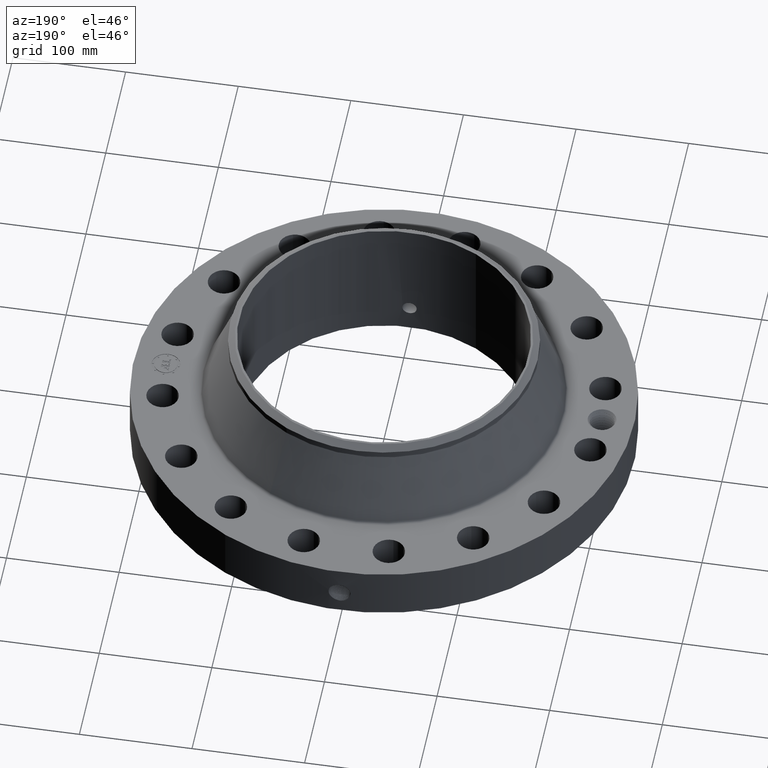
[diagram: clean part render]
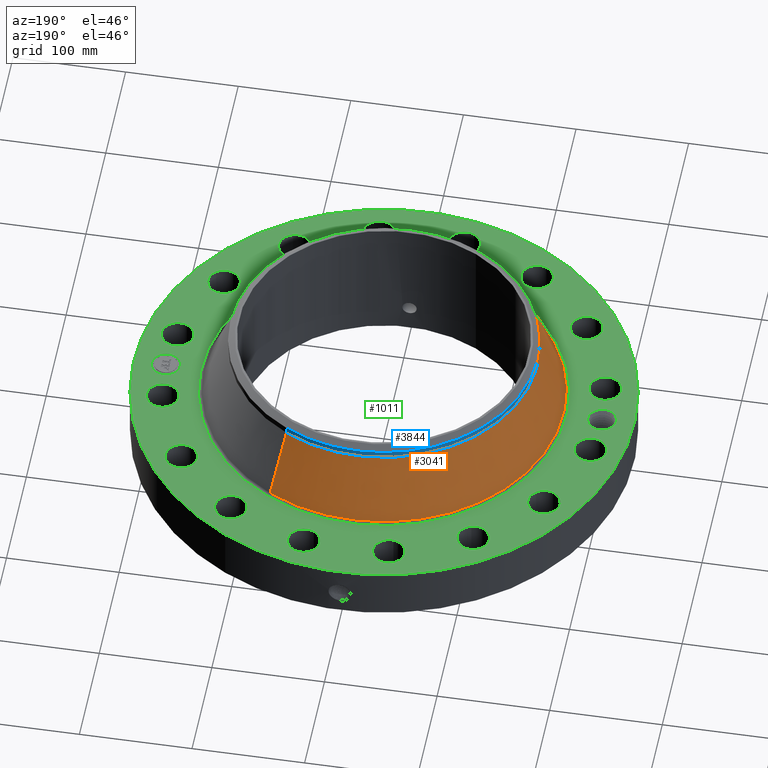
[diagram: same view with three faces highlighted in distinct colors, each labeled with its STEP entity id]
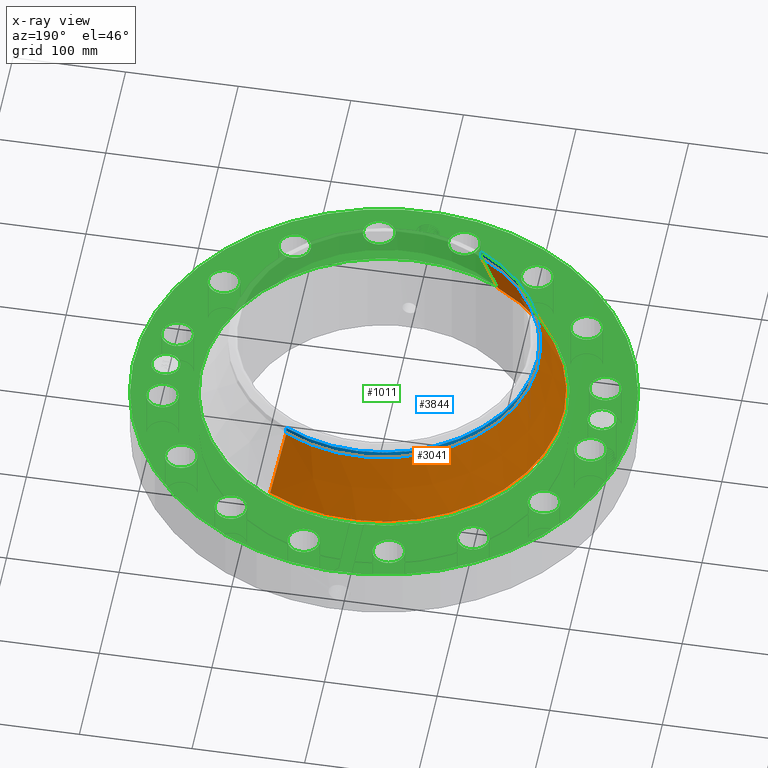
[diagram: x-ray of the same camera — body ghosted, the three highlighted faces saturated]
A machine part, auxiliary view with three faces highlighted in distinct colors.
The next image is the same camera in x-ray (body ghosted, the three faces saturated) — at least one of them is partly hidden behind the body in this view.
Their STEP definitions:

[orange] entity #3041 — the highlighted conical surface has half-angle 21.877 deg.
#2351=AXIS2_PLACEMENT_3D('Circle Axis2P3D',#2349,#2350,$) ;
#3002=AXIS2_PLACEMENT_3D('Cone Axis2P3D',#2999,#3000,#3001) ;
#3032=AXIS2_PLACEMENT_3D('Circle Axis2P3D',#3030,#3031,$) ;
#2327=CARTESIAN_POINT('Vertex',(3.01068236931,5.51101711099,2.01528688262)) ;
#2334=CARTESIAN_POINT('Vertex',(-3.01068236931,-5.51101711099,2.01528688262)) ;
#2349=CARTESIAN_POINT('Axis2P3D Location',(0.,0.,2.01528688262)) ;
#2999=CARTESIAN_POINT('Axis2P3D Location',(0.,0.,4.26862959014)) ;
#3004=CARTESIAN_POINT('Line Origine',(2.79379731966,5.11401169058,3.14195823638)) ;
#3008=CARTESIAN_POINT('Vertex',(2.57691227001,4.71700627018,4.26862959014)) ;
#3015=CARTESIAN_POINT('Vertex',(-2.57691227001,-4.71700627018,4.26862959014)) ;
#3018=CARTESIAN_POINT('Line Origine',(-2.79379731966,-5.11401169058,3.14195823638)) ;
#3030=CARTESIAN_POINT('Axis2P3D Location',(0.,0.,4.26862959014)) ;
#2350=DIRECTION('Axis2P3D Direction',(0.,0.,-0.0393700787402)) ;
#3000=DIRECTION('Axis2P3D Direction',(0.,0.,-0.0393700787402)) ;
#3001=DIRECTION('Axis2P3D XDirection',(-0.0188750212049,-0.0345504945626,0.)) ;
#3005=DIRECTION('Vector Direction',(0.00703300865759,0.0128738359944,-0.0365349727798)) ;
#3019=DIRECTION('Vector Direction',(-0.00703300865759,-0.0128738359944,-0.0365349727798)) ;
#3031=DIRECTION('Axis2P3D Direction',(0.,0.,-0.0393700787402)) ;
#3006=VECTOR('Line Direction',#3005,0.0393700787402) ;
#3020=VECTOR('Line Direction',#3019,0.0393700787402) ;
#3036=ORIENTED_EDGE('',*,*,#2353,.F.) ;
#3037=ORIENTED_EDGE('',*,*,#3022,.T.) ;
#3038=ORIENTED_EDGE('',*,*,#3034,.T.) ;
#3039=ORIENTED_EDGE('',*,*,#3010,.F.) ;
#3041=ADVANCED_FACE('PartBody',(#3040),#3003,.T.) ;
#2352=CIRCLE('generated circle',#2351,6.27977053136) ;
#3033=CIRCLE('generated circle',#3032,5.37500000002) ;
#3003=CONICAL_SURFACE('Cone',#3002,5.37500000002,0.381819232535) ;
#2353=EDGE_CURVE('',#2335,#2328,#2352,.T.) ;
#3010=EDGE_CURVE('',#2328,#3009,#3007,.F.) ;
#3022=EDGE_CURVE('',#2335,#3016,#3021,.F.) ;
#3034=EDGE_CURVE('',#3016,#3009,#3033,.T.) ;
#3035=EDGE_LOOP('',(#3036,#3037,#3038,#3039)) ;
#3040=FACE_OUTER_BOUND('',#3035,.T.) ;
#3007=LINE('Line',#3004,#3006) ;
#3021=LINE('Line',#3018,#3020) ;
#2328=VERTEX_POINT('',#2327) ;
#2335=VERTEX_POINT('',#2334) ;
#3009=VERTEX_POINT('',#3008) ;
#3016=VERTEX_POINT('',#3015) ;

[blue] entity #3844 — the highlighted cylindrical surface (partial cylindrical patch) has radius 136.525 mm, axis along (0, 0, -1).
#3032=AXIS2_PLACEMENT_3D('Circle Axis2P3D',#3030,#3031,$) ;
#3789=AXIS2_PLACEMENT_3D('Cylinder Axis2P3D',#3786,#3787,#3788) ;
#3827=AXIS2_PLACEMENT_3D('Circle Axis2P3D',#3825,#3826,$) ;
#3834=AXIS2_PLACEMENT_3D('Circle Axis2P3D',#3832,#3833,$) ;
#3008=CARTESIAN_POINT('Vertex',(2.57691227001,4.71700627018,4.26862959014)) ;
#3015=CARTESIAN_POINT('Vertex',(-2.57691227001,-4.71700627018,4.26862959014)) ;
#3030=CARTESIAN_POINT('Axis2P3D Location',(0.,0.,4.26862959014)) ;
#3786=CARTESIAN_POINT('Axis2P3D Location',(0.,0.,2.34000000001)) ;
#3791=CARTESIAN_POINT('Line Origine',(-2.57691227001,-4.71700627018,4.38673982636)) ;
#3795=CARTESIAN_POINT('Vertex',(-2.57691227001,-4.71700627018,4.50485006258)) ;
#3798=CARTESIAN_POINT('Line Origine',(2.57691227001,4.71700627018,4.38673982636)) ;
#3802=CARTESIAN_POINT('Vertex',(2.57691227001,4.71700627018,4.50485006258)) ;
#3825=CARTESIAN_POINT('Axis2P3D Location',(0.,0.,4.50485006258)) ;
#3829=CARTESIAN_POINT('Vertex',(-2.57691227001,4.71700627018,4.50485006258)) ;
#3832=CARTESIAN_POINT('Axis2P3D Location',(0.,0.,4.50485006258)) ;
#3031=DIRECTION('Axis2P3D Direction',(0.,0.,-0.0393700787402)) ;
#3787=DIRECTION('Axis2P3D Direction',(0.,0.,-0.0393700787402)) ;
#3788=DIRECTION('Axis2P3D XDirection',(-0.0188750212049,-0.0345504945626,0.)) ;
#3792=DIRECTION('Vector Direction',(0.,0.,-0.0393700787402)) ;
#3799=DIRECTION('Vector Direction',(0.,0.,-0.0393700787402)) ;
#3826=DIRECTION('Axis2P3D Direction',(0.,0.,-0.0393700787402)) ;
#3833=DIRECTION('Axis2P3D Direction',(0.,0.,-0.0393700787402)) ;
#3793=VECTOR('Line Direction',#3792,0.0393700787402) ;
#3800=VECTOR('Line Direction',#3799,0.0393700787402) ;
#3838=ORIENTED_EDGE('',*,*,#3804,.F.) ;
#3839=ORIENTED_EDGE('',*,*,#3034,.F.) ;
#3840=ORIENTED_EDGE('',*,*,#3797,.T.) ;
#3841=ORIENTED_EDGE('',*,*,#3831,.F.) ;
#3842=ORIENTED_EDGE('',*,*,#3836,.T.) ;
#3844=ADVANCED_FACE('PartBody',(#3843),#3790,.T.) ;
#3033=CIRCLE('generated circle',#3032,5.37500000002) ;
#3828=CIRCLE('generated circle',#3827,5.37500000002) ;
#3835=CIRCLE('generated circle',#3834,5.37500000002) ;
#3790=CYLINDRICAL_SURFACE('generated cylinder',#3789,5.37500000002) ;
#3034=EDGE_CURVE('',#3016,#3009,#3033,.T.) ;
#3797=EDGE_CURVE('',#3016,#3796,#3794,.F.) ;
#3804=EDGE_CURVE('',#3009,#3803,#3801,.F.) ;
#3831=EDGE_CURVE('',#3830,#3796,#3828,.F.) ;
#3836=EDGE_CURVE('',#3830,#3803,#3835,.T.) ;
#3837=EDGE_LOOP('',(#3838,#3839,#3840,#3841,#3842)) ;
#3843=FACE_OUTER_BOUND('',#3837,.T.) ;
#3794=LINE('Line',#3791,#3793) ;
#3801=LINE('Line',#3798,#3800) ;
#3009=VERTEX_POINT('',#3008) ;
#3016=VERTEX_POINT('',#3015) ;
#3796=VERTEX_POINT('',#3795) ;
#3803=VERTEX_POINT('',#3802) ;
#3830=VERTEX_POINT('',#3829) ;

[green] entity #1011 — the highlighted planar face has unit normal (0, 0, -1).
#58=AXIS2_PLACEMENT_3D('Circle Axis2P3D',#56,#57,$) ;
#533=AXIS2_PLACEMENT_3D('Circle Axis2P3D',#531,#532,$) ;
#633=AXIS2_PLACEMENT_3D('Plane Axis2P3D',#630,#631,#632) ;
#663=AXIS2_PLACEMENT_3D('Circle Axis2P3D',#661,#662,$) ;
#670=AXIS2_PLACEMENT_3D('Circle Axis2P3D',#668,#669,$) ;
#677=AXIS2_PLACEMENT_3D('Circle Axis2P3D',#675,#676,$) ;
#689=AXIS2_PLACEMENT_3D('Circle Axis2P3D',#687,#688,$) ;
#698=AXIS2_PLACEMENT_3D('Circle Axis2P3D',#696,#697,$) ;
#707=AXIS2_PLACEMENT_3D('Circle Axis2P3D',#705,#706,$) ;
#716=AXIS2_PLACEMENT_3D('Circle Axis2P3D',#714,#715,$) ;
#725=AXIS2_PLACEMENT_3D('Circle Axis2P3D',#723,#724,$) ;
#734=AXIS2_PLACEMENT_3D('Circle Axis2P3D',#732,#733,$) ;
#743=AXIS2_PLACEMENT_3D('Circle Axis2P3D',#741,#742,$) ;
#752=AXIS2_PLACEMENT_3D('Circle Axis2P3D',#750,#751,$) ;
#761=AXIS2_PLACEMENT_3D('Circle Axis2P3D',#759,#760,$) ;
#770=AXIS2_PLACEMENT_3D('Circle Axis2P3D',#768,#769,$) ;
#779=AXIS2_PLACEMENT_3D('Circle Axis2P3D',#777,#778,$) ;
#788=AXIS2_PLACEMENT_3D('Circle Axis2P3D',#786,#787,$) ;
#797=AXIS2_PLACEMENT_3D('Circle Axis2P3D',#795,#796,$) ;
#806=AXIS2_PLACEMENT_3D('Circle Axis2P3D',#804,#805,$) ;
#815=AXIS2_PLACEMENT_3D('Circle Axis2P3D',#813,#814,$) ;
#824=AXIS2_PLACEMENT_3D('Circle Axis2P3D',#822,#823,$) ;
#833=AXIS2_PLACEMENT_3D('Circle Axis2P3D',#831,#832,$) ;
#842=AXIS2_PLACEMENT_3D('Circle Axis2P3D',#840,#841,$) ;
#851=AXIS2_PLACEMENT_3D('Circle Axis2P3D',#849,#850,$) ;
#860=AXIS2_PLACEMENT_3D('Circle Axis2P3D',#858,#859,$) ;
#869=AXIS2_PLACEMENT_3D('Circle Axis2P3D',#867,#868,$) ;
#878=AXIS2_PLACEMENT_3D('Circle Axis2P3D',#876,#877,$) ;
#887=AXIS2_PLACEMENT_3D('Circle Axis2P3D',#885,#886,$) ;
#896=AXIS2_PLACEMENT_3D('Circle Axis2P3D',#894,#895,$) ;
#905=AXIS2_PLACEMENT_3D('Circle Axis2P3D',#903,#904,$) ;
#914=AXIS2_PLACEMENT_3D('Circle Axis2P3D',#912,#913,$) ;
#923=AXIS2_PLACEMENT_3D('Circle Axis2P3D',#921,#922,$) ;
#932=AXIS2_PLACEMENT_3D('Circle Axis2P3D',#930,#931,$) ;
#941=AXIS2_PLACEMENT_3D('Circle Axis2P3D',#939,#940,$) ;
#950=AXIS2_PLACEMENT_3D('Circle Axis2P3D',#948,#949,$) ;
#959=AXIS2_PLACEMENT_3D('Circle Axis2P3D',#957,#958,$) ;
#968=AXIS2_PLACEMENT_3D('Circle Axis2P3D',#966,#967,$) ;
#977=AXIS2_PLACEMENT_3D('Circle Axis2P3D',#975,#976,$) ;
#986=AXIS2_PLACEMENT_3D('Circle Axis2P3D',#984,#985,$) ;
#995=AXIS2_PLACEMENT_3D('Circle Axis2P3D',#993,#994,$) ;
#1004=AXIS2_PLACEMENT_3D('Circle Axis2P3D',#1002,#1003,$) ;
#53=CARTESIAN_POINT('Vertex',(-4.1949734628,-7.67884741657,1.94000000001)) ;
#56=CARTESIAN_POINT('Axis2P3D Location',(0.,0.,1.94000000001)) ;
#60=CARTESIAN_POINT('Vertex',(4.1949734628,7.67884741657,1.94000000001)) ;
#531=CARTESIAN_POINT('Axis2P3D Location',(0.,0.,1.94000000001)) ;
#630=CARTESIAN_POINT('Axis2P3D Location',(0.,8.75000000003,1.94000000001)) ;
#640=CARTESIAN_POINT('Control Point',(-7.12500000003,1.1189649382E-015,1.94000000001)) ;
#641=CARTESIAN_POINT('Control Point',(-7.12549933771,0.0123420388039,1.94000000001)) ;
#642=CARTESIAN_POINT('Control Point',(-7.12637981959,0.0246614623112,1.94000000001)) ;
#643=CARTESIAN_POINT('Control Point',(-7.12764056744,0.0369424494537,1.94000000001)) ;
#644=CARTESIAN_POINT('Control Point',(-7.12927967867,0.0491692258093,1.94000000001)) ;
#645=CARTESIAN_POINT('Control Point',(-7.13129426964,0.0613261916736,1.94000000001)) ;
#646=CARTESIAN_POINT('Vertex',(-7.12500000003,1.1189649382E-015,1.94000000001)) ;
#648=CARTESIAN_POINT('Vertex',(-7.13129426964,0.0613261916736,1.94000000001)) ;
#652=CARTESIAN_POINT('Control Point',(-7.12500000003,0.,1.94000000001)) ;
#653=CARTESIAN_POINT('Control Point',(-7.12549957615,-0.0123479322051,1.94000000001)) ;
#654=CARTESIAN_POINT('Control Point',(-7.12638066088,-0.0246732275083,1.94000000001)) ;
#655=CARTESIAN_POINT('Control Point',(-7.12764219891,-0.0369596660273,1.94000000001)) ;
#656=CARTESIAN_POINT('Control Point',(-7.12928214218,-0.0491911921282,1.94000000001)) ;
#657=CARTESIAN_POINT('Control Point',(-7.13129747787,-0.0613520139359,1.94000000001)) ;
#658=CARTESIAN_POINT('Vertex',(-7.13129747787,-0.0613520139359,1.94000000001)) ;
#661=CARTESIAN_POINT('Axis2P3D Location',(-7.62500000003,-4.47585975282E-015,1.94000000001)) ;
#665=CARTESIAN_POINT('Vertex',(-7.18840267549,-0.238514205457,1.94000000001)) ;
#668=CARTESIAN_POINT('Axis2P3D Location',(-7.62500000003,-4.47585975282E-015,1.94000000001)) ;
#672=CARTESIAN_POINT('Vertex',(-8.06159732457,0.238514205457,1.94000000001)) ;
#675=CARTESIAN_POINT('Axis2P3D Location',(-7.62500000003,-4.47585975282E-015,1.94000000001)) ;
#687=CARTESIAN_POINT('Axis2P3D Location',(7.4784877631,-1.48756370538,1.94000000001)) ;
#691=CARTESIAN_POINT('Vertex',(6.98704152844,-1.21908540376,1.94000000001)) ;
#693=CARTESIAN_POINT('Vertex',(7.96993399777,-1.756042007,1.94000000001)) ;
#696=CARTESIAN_POINT('Axis2P3D Location',(7.4784877631,-1.48756370538,1.94000000001)) ;
#705=CARTESIAN_POINT('Axis2P3D Location',(0.,0.,1.94000000001)) ;
#709=CARTESIAN_POINT('Vertex',(-3.06407052467,-5.60874347386,1.94000000001)) ;
#711=CARTESIAN_POINT('Vertex',(3.06407052467,5.60874347386,1.94000000001)) ;
#714=CARTESIAN_POINT('Axis2P3D Location',(0.,0.,1.94000000001)) ;
#723=CARTESIAN_POINT('Axis2P3D Location',(6.33995579383,-4.23622302679,1.94000000001)) ;
#727=CARTESIAN_POINT('Vertex',(6.69125071339,-4.67233296648,1.94000000001)) ;
#729=CARTESIAN_POINT('Vertex',(5.98866087428,-3.8001130871,1.94000000001)) ;
#732=CARTESIAN_POINT('Axis2P3D Location',(6.33995579383,-4.23622302679,1.94000000001)) ;
#741=CARTESIAN_POINT('Axis2P3D Location',(4.23622302679,-6.33995579383,1.94000000001)) ;
#745=CARTESIAN_POINT('Vertex',(4.39388516423,-6.87730358663,1.94000000001)) ;
#747=CARTESIAN_POINT('Vertex',(4.07856088935,-5.80260800104,1.94000000001)) ;
#750=CARTESIAN_POINT('Axis2P3D Location',(4.23622302679,-6.33995579383,1.94000000001)) ;
#759=CARTESIAN_POINT('Axis2P3D Location',(1.48756370538,-7.4784877631,1.94000000001)) ;
#763=CARTESIAN_POINT('Vertex',(1.42759042949,-8.03526707862,1.94000000001)) ;
#765=CARTESIAN_POINT('Vertex',(1.54753698127,-6.92170844759,1.94000000001)) ;
#768=CARTESIAN_POINT('Axis2P3D Location',(1.48756370538,-7.4784877631,1.94000000001)) ;
#777=CARTESIAN_POINT('Axis2P3D Location',(-1.48756370538,-7.4784877631,1.94000000001)) ;
#781=CARTESIAN_POINT('Vertex',(-1.756042007,-7.96993399777,1.94000000001)) ;
#783=CARTESIAN_POINT('Vertex',(-1.21908540376,-6.98704152844,1.94000000001)) ;
#786=CARTESIAN_POINT('Axis2P3D Location',(-1.48756370538,-7.4784877631,1.94000000001)) ;
#795=CARTESIAN_POINT('Axis2P3D Location',(-4.23622302679,-6.33995579383,1.94000000001)) ;
#799=CARTESIAN_POINT('Vertex',(-4.67233296648,-6.69125071339,1.94000000001)) ;
#801=CARTESIAN_POINT('Vertex',(-3.8001130871,-5.98866087428,1.94000000001)) ;
#804=CARTESIAN_POINT('Axis2P3D Location',(-4.23622302679,-6.33995579383,1.94000000001)) ;
#813=CARTESIAN_POINT('Axis2P3D Location',(-6.33995579383,-4.23622302679,1.94000000001)) ;
#817=CARTESIAN_POINT('Vertex',(-6.87730358663,-4.39388516423,1.94000000001)) ;
#819=CARTESIAN_POINT('Vertex',(-5.80260800104,-4.07856088935,1.94000000001)) ;
#822=CARTESIAN_POINT('Axis2P3D Location',(-6.33995579383,-4.23622302679,1.94000000001)) ;
#831=CARTESIAN_POINT('Axis2P3D Location',(-7.4784877631,-1.48756370538,1.94000000001)) ;
#835=CARTESIAN_POINT('Vertex',(-8.03526707862,-1.42759042949,1.94000000001)) ;
#837=CARTESIAN_POINT('Vertex',(-6.92170844759,-1.54753698127,1.94000000001)) ;
#840=CARTESIAN_POINT('Axis2P3D Location',(-7.4784877631,-1.48756370538,1.94000000001)) ;
#849=CARTESIAN_POINT('Axis2P3D Location',(-7.4784877631,1.48756370538,1.94000000001)) ;
#853=CARTESIAN_POINT('Vertex',(-7.96993399777,1.756042007,1.94000000001)) ;
#855=CARTESIAN_POINT('Vertex',(-6.98704152844,1.21908540376,1.94000000001)) ;
#858=CARTESIAN_POINT('Axis2P3D Location',(-7.4784877631,1.48756370538,1.94000000001)) ;
#867=CARTESIAN_POINT('Axis2P3D Location',(-6.33995579383,4.23622302679,1.94000000001)) ;
#871=CARTESIAN_POINT('Vertex',(-6.69125071339,4.67233296648,1.94000000001)) ;
#873=CARTESIAN_POINT('Vertex',(-5.98866087428,3.8001130871,1.94000000001)) ;
#876=CARTESIAN_POINT('Axis2P3D Location',(-6.33995579383,4.23622302679,1.94000000001)) ;
#885=CARTESIAN_POINT('Axis2P3D Location',(-4.23622302679,6.33995579383,1.94000000001)) ;
#889=CARTESIAN_POINT('Vertex',(-4.39388516423,6.87730358663,1.94000000001)) ;
#891=CARTESIAN_POINT('Vertex',(-4.07856088935,5.80260800104,1.94000000001)) ;
#894=CARTESIAN_POINT('Axis2P3D Location',(-4.23622302679,6.33995579383,1.94000000001)) ;
#903=CARTESIAN_POINT('Axis2P3D Location',(-1.48756370538,7.4784877631,1.94000000001)) ;
#907=CARTESIAN_POINT('Vertex',(-1.42759042949,8.03526707862,1.94000000001)) ;
#909=CARTESIAN_POINT('Vertex',(-1.54753698127,6.92170844759,1.94000000001)) ;
#912=CARTESIAN_POINT('Axis2P3D Location',(-1.48756370538,7.4784877631,1.94000000001)) ;
#921=CARTESIAN_POINT('Axis2P3D Location',(1.48756370538,7.4784877631,1.94000000001)) ;
#925=CARTESIAN_POINT('Vertex',(1.756042007,7.96993399777,1.94000000001)) ;
#927=CARTESIAN_POINT('Vertex',(1.21908540376,6.98704152844,1.94000000001)) ;
#930=CARTESIAN_POINT('Axis2P3D Location',(1.48756370538,7.4784877631,1.94000000001)) ;
#939=CARTESIAN_POINT('Axis2P3D Location',(4.23622302679,6.33995579383,1.94000000001)) ;
#943=CARTESIAN_POINT('Vertex',(4.67233296648,6.69125071339,1.94000000001)) ;
#945=CARTESIAN_POINT('Vertex',(3.8001130871,5.98866087428,1.94000000001)) ;
#948=CARTESIAN_POINT('Axis2P3D Location',(4.23622302679,6.33995579383,1.94000000001)) ;
#957=CARTESIAN_POINT('Axis2P3D Location',(6.33995579383,4.23622302679,1.94000000001)) ;
#961=CARTESIAN_POINT('Vertex',(6.87730358663,4.39388516423,1.94000000001)) ;
#963=CARTESIAN_POINT('Vertex',(5.80260800104,4.07856088935,1.94000000001)) ;
#966=CARTESIAN_POINT('Axis2P3D Location',(6.33995579383,4.23622302679,1.94000000001)) ;
#975=CARTESIAN_POINT('Axis2P3D Location',(7.4784877631,1.48756370538,1.94000000001)) ;
#979=CARTESIAN_POINT('Vertex',(8.03526707862,1.42759042949,1.94000000001)) ;
#981=CARTESIAN_POINT('Vertex',(6.92170844759,1.54753698127,1.94000000001)) ;
#984=CARTESIAN_POINT('Axis2P3D Location',(7.4784877631,1.48756370538,1.94000000001)) ;
#993=CARTESIAN_POINT('Axis2P3D Location',(7.62500000003,-3.35689481461E-014,1.94000000001)) ;
#997=CARTESIAN_POINT('Vertex',(7.62500000003,0.499999995002,1.94000000001)) ;
#999=CARTESIAN_POINT('Vertex',(7.62500000003,-0.499999995002,1.94000000001)) ;
#1002=CARTESIAN_POINT('Axis2P3D Location',(7.62500000003,-3.24499832079E-014,1.94000000001)) ;
#57=DIRECTION('Axis2P3D Direction',(0.,0.,-0.0393700787402)) ;
#532=DIRECTION('Axis2P3D Direction',(0.,0.,-0.0393700787402)) ;
#631=DIRECTION('Axis2P3D Direction',(0.,0.,-0.0393700787402)) ;
#632=DIRECTION('Axis2P3D XDirection',(0.0393700787402,0.,0.)) ;
#662=DIRECTION('Axis2P3D Direction',(0.,0.,-0.0393700787402)) ;
#669=DIRECTION('Axis2P3D Direction',(0.,0.,-0.0393700787402)) ;
#676=DIRECTION('Axis2P3D Direction',(0.,0.,-0.0393700787402)) ;
#688=DIRECTION('Axis2P3D Direction',(0.,0.,-0.0393700787402)) ;
#697=DIRECTION('Axis2P3D Direction',(0.,0.,-0.0393700787402)) ;
#706=DIRECTION('Axis2P3D Direction',(0.,0.,-0.0393700787402)) ;
#715=DIRECTION('Axis2P3D Direction',(0.,0.,-0.0393700787402)) ;
#724=DIRECTION('Axis2P3D Direction',(0.,0.,-0.0393700787402)) ;
#733=DIRECTION('Axis2P3D Direction',(0.,0.,-0.0393700787402)) ;
#742=DIRECTION('Axis2P3D Direction',(0.,0.,-0.0393700787402)) ;
#751=DIRECTION('Axis2P3D Direction',(0.,0.,-0.0393700787402)) ;
#760=DIRECTION('Axis2P3D Direction',(0.,0.,-0.0393700787402)) ;
#769=DIRECTION('Axis2P3D Direction',(0.,0.,-0.0393700787402)) ;
#778=DIRECTION('Axis2P3D Direction',(0.,0.,-0.0393700787402)) ;
#787=DIRECTION('Axis2P3D Direction',(0.,0.,-0.0393700787402)) ;
#796=DIRECTION('Axis2P3D Direction',(0.,0.,-0.0393700787402)) ;
#805=DIRECTION('Axis2P3D Direction',(0.,0.,-0.0393700787402)) ;
#814=DIRECTION('Axis2P3D Direction',(0.,0.,-0.0393700787402)) ;
#823=DIRECTION('Axis2P3D Direction',(0.,0.,-0.0393700787402)) ;
#832=DIRECTION('Axis2P3D Direction',(0.,0.,-0.0393700787402)) ;
#841=DIRECTION('Axis2P3D Direction',(0.,0.,-0.0393700787402)) ;
#850=DIRECTION('Axis2P3D Direction',(0.,0.,-0.0393700787402)) ;
#859=DIRECTION('Axis2P3D Direction',(0.,0.,-0.0393700787402)) ;
#868=DIRECTION('Axis2P3D Direction',(0.,0.,-0.0393700787402)) ;
#877=DIRECTION('Axis2P3D Direction',(0.,0.,-0.0393700787402)) ;
#886=DIRECTION('Axis2P3D Direction',(0.,0.,-0.0393700787402)) ;
#895=DIRECTION('Axis2P3D Direction',(0.,0.,-0.0393700787402)) ;
#904=DIRECTION('Axis2P3D Direction',(0.,0.,-0.0393700787402)) ;
#913=DIRECTION('Axis2P3D Direction',(0.,0.,-0.0393700787402)) ;
#922=DIRECTION('Axis2P3D Direction',(0.,0.,-0.0393700787402)) ;
#931=DIRECTION('Axis2P3D Direction',(0.,0.,-0.0393700787402)) ;
#940=DIRECTION('Axis2P3D Direction',(0.,0.,-0.0393700787402)) ;
#949=DIRECTION('Axis2P3D Direction',(0.,0.,-0.0393700787402)) ;
#958=DIRECTION('Axis2P3D Direction',(0.,0.,-0.0393700787402)) ;
#967=DIRECTION('Axis2P3D Direction',(0.,0.,-0.0393700787402)) ;
#976=DIRECTION('Axis2P3D Direction',(0.,0.,-0.0393700787402)) ;
#985=DIRECTION('Axis2P3D Direction',(0.,0.,-0.0393700787402)) ;
#994=DIRECTION('Axis2P3D Direction',(0.,0.,-0.0393700787402)) ;
#1003=DIRECTION('Axis2P3D Direction',(0.,0.,-0.0393700787402)) ;
#636=ORIENTED_EDGE('',*,*,#535,.F.) ;
#637=ORIENTED_EDGE('',*,*,#62,.F.) ;
#681=ORIENTED_EDGE('',*,*,#650,.F.) ;
#682=ORIENTED_EDGE('',*,*,#660,.T.) ;
#683=ORIENTED_EDGE('',*,*,#667,.T.) ;
#684=ORIENTED_EDGE('',*,*,#674,.T.) ;
#685=ORIENTED_EDGE('',*,*,#679,.T.) ;
#702=ORIENTED_EDGE('',*,*,#695,.T.) ;
#703=ORIENTED_EDGE('',*,*,#700,.T.) ;
#720=ORIENTED_EDGE('',*,*,#713,.T.) ;
#721=ORIENTED_EDGE('',*,*,#718,.T.) ;
#738=ORIENTED_EDGE('',*,*,#731,.T.) ;
#739=ORIENTED_EDGE('',*,*,#736,.T.) ;
#756=ORIENTED_EDGE('',*,*,#749,.T.) ;
#757=ORIENTED_EDGE('',*,*,#754,.T.) ;
#774=ORIENTED_EDGE('',*,*,#767,.T.) ;
#775=ORIENTED_EDGE('',*,*,#772,.T.) ;
#792=ORIENTED_EDGE('',*,*,#785,.T.) ;
#793=ORIENTED_EDGE('',*,*,#790,.T.) ;
#810=ORIENTED_EDGE('',*,*,#803,.T.) ;
#811=ORIENTED_EDGE('',*,*,#808,.T.) ;
#828=ORIENTED_EDGE('',*,*,#821,.T.) ;
#829=ORIENTED_EDGE('',*,*,#826,.T.) ;
#846=ORIENTED_EDGE('',*,*,#839,.T.) ;
#847=ORIENTED_EDGE('',*,*,#844,.T.) ;
#864=ORIENTED_EDGE('',*,*,#857,.T.) ;
#865=ORIENTED_EDGE('',*,*,#862,.T.) ;
#882=ORIENTED_EDGE('',*,*,#875,.T.) ;
#883=ORIENTED_EDGE('',*,*,#880,.T.) ;
#900=ORIENTED_EDGE('',*,*,#893,.T.) ;
#901=ORIENTED_EDGE('',*,*,#898,.T.) ;
#918=ORIENTED_EDGE('',*,*,#911,.T.) ;
#919=ORIENTED_EDGE('',*,*,#916,.T.) ;
#936=ORIENTED_EDGE('',*,*,#929,.T.) ;
#937=ORIENTED_EDGE('',*,*,#934,.T.) ;
#954=ORIENTED_EDGE('',*,*,#947,.T.) ;
#955=ORIENTED_EDGE('',*,*,#952,.T.) ;
#972=ORIENTED_EDGE('',*,*,#965,.T.) ;
#973=ORIENTED_EDGE('',*,*,#970,.T.) ;
#990=ORIENTED_EDGE('',*,*,#983,.T.) ;
#991=ORIENTED_EDGE('',*,*,#988,.T.) ;
#1008=ORIENTED_EDGE('',*,*,#1001,.T.) ;
#1009=ORIENTED_EDGE('',*,*,#1006,.T.) ;
#686=FACE_BOUND('',#680,.T.) ;
#704=FACE_BOUND('',#701,.T.) ;
#722=FACE_BOUND('',#719,.T.) ;
#740=FACE_BOUND('',#737,.T.) ;
#758=FACE_BOUND('',#755,.T.) ;
#776=FACE_BOUND('',#773,.T.) ;
#794=FACE_BOUND('',#791,.T.) ;
#812=FACE_BOUND('',#809,.T.) ;
#830=FACE_BOUND('',#827,.T.) ;
#848=FACE_BOUND('',#845,.T.) ;
#866=FACE_BOUND('',#863,.T.) ;
#884=FACE_BOUND('',#881,.T.) ;
#902=FACE_BOUND('',#899,.T.) ;
#920=FACE_BOUND('',#917,.T.) ;
#938=FACE_BOUND('',#935,.T.) ;
#956=FACE_BOUND('',#953,.T.) ;
#974=FACE_BOUND('',#971,.T.) ;
#992=FACE_BOUND('',#989,.T.) ;
#1010=FACE_BOUND('',#1007,.T.) ;
#1011=ADVANCED_FACE('PartBody',(#638,#686,#704,#722,#740,#758,#776,#794,#812,#830,#848,#866,#884,#902,#920,#938,#956,#974,#992,#1010),#634,.F.) ;
#639=B_SPLINE_CURVE_WITH_KNOTS('',5,(#640,#641,#642,#643,#644,#645),.UNSPECIFIED.,.F.,.U.,(6,6),(0.,2.15175435869),.UNSPECIFIED.) ;
#651=B_SPLINE_CURVE_WITH_KNOTS('',5,(#652,#653,#654,#655,#656,#657),.UNSPECIFIED.,.F.,.U.,(6,6),(0.,2.15278183491),.UNSPECIFIED.) ;
#59=CIRCLE('generated circle',#58,8.75000000003) ;
#534=CIRCLE('generated circle',#533,8.75000000003) ;
#664=CIRCLE('generated circle',#663,0.497500000002) ;
#671=CIRCLE('generated circle',#670,0.497500000002) ;
#678=CIRCLE('generated circle',#677,0.497500000002) ;
#690=CIRCLE('generated circle',#689,0.560000000002) ;
#699=CIRCLE('generated circle',#698,0.560000000002) ;
#708=CIRCLE('generated circle',#707,6.39112912839) ;
#717=CIRCLE('generated circle',#716,6.39112912839) ;
#726=CIRCLE('generated circle',#725,0.560000000002) ;
#735=CIRCLE('generated circle',#734,0.560000000002) ;
#744=CIRCLE('generated circle',#743,0.560000000002) ;
#753=CIRCLE('generated circle',#752,0.560000000002) ;
#762=CIRCLE('generated circle',#761,0.560000000002) ;
#771=CIRCLE('generated circle',#770,0.560000000002) ;
#780=CIRCLE('generated circle',#779,0.560000000002) ;
#789=CIRCLE('generated circle',#788,0.560000000002) ;
#798=CIRCLE('generated circle',#797,0.560000000002) ;
#807=CIRCLE('generated circle',#806,0.560000000002) ;
#816=CIRCLE('generated circle',#815,0.560000000002) ;
#825=CIRCLE('generated circle',#824,0.560000000002) ;
#834=CIRCLE('generated circle',#833,0.560000000002) ;
#843=CIRCLE('generated circle',#842,0.560000000002) ;
#852=CIRCLE('generated circle',#851,0.560000000002) ;
#861=CIRCLE('generated circle',#860,0.560000000002) ;
#870=CIRCLE('generated circle',#869,0.560000000002) ;
#879=CIRCLE('generated circle',#878,0.560000000002) ;
#888=CIRCLE('generated circle',#887,0.560000000002) ;
#897=CIRCLE('generated circle',#896,0.560000000002) ;
#906=CIRCLE('generated circle',#905,0.560000000002) ;
#915=CIRCLE('generated circle',#914,0.560000000002) ;
#924=CIRCLE('generated circle',#923,0.560000000002) ;
#933=CIRCLE('generated circle',#932,0.560000000002) ;
#942=CIRCLE('generated circle',#941,0.560000000002) ;
#951=CIRCLE('generated circle',#950,0.560000000002) ;
#960=CIRCLE('generated circle',#959,0.560000000002) ;
#969=CIRCLE('generated circle',#968,0.560000000002) ;
#978=CIRCLE('generated circle',#977,0.560000000002) ;
#987=CIRCLE('generated circle',#986,0.560000000002) ;
#996=CIRCLE('generated circle',#995,0.499999995002) ;
#1005=CIRCLE('generated circle',#1004,0.499999995002) ;
#62=EDGE_CURVE('',#54,#61,#59,.T.) ;
#535=EDGE_CURVE('',#61,#54,#534,.T.) ;
#650=EDGE_CURVE('',#647,#649,#639,.T.) ;
#660=EDGE_CURVE('',#647,#659,#651,.T.) ;
#667=EDGE_CURVE('',#659,#666,#664,.T.) ;
#674=EDGE_CURVE('',#666,#673,#671,.T.) ;
#679=EDGE_CURVE('',#673,#649,#678,.T.) ;
#695=EDGE_CURVE('',#692,#694,#690,.T.) ;
#700=EDGE_CURVE('',#694,#692,#699,.T.) ;
#713=EDGE_CURVE('',#710,#712,#708,.T.) ;
#718=EDGE_CURVE('',#712,#710,#717,.T.) ;
#731=EDGE_CURVE('',#728,#730,#726,.T.) ;
#736=EDGE_CURVE('',#730,#728,#735,.T.) ;
#749=EDGE_CURVE('',#746,#748,#744,.T.) ;
#754=EDGE_CURVE('',#748,#746,#753,.T.) ;
#767=EDGE_CURVE('',#764,#766,#762,.T.) ;
#772=EDGE_CURVE('',#766,#764,#771,.T.) ;
#785=EDGE_CURVE('',#782,#784,#780,.T.) ;
#790=EDGE_CURVE('',#784,#782,#789,.T.) ;
#803=EDGE_CURVE('',#800,#802,#798,.T.) ;
#808=EDGE_CURVE('',#802,#800,#807,.T.) ;
#821=EDGE_CURVE('',#818,#820,#816,.T.) ;
#826=EDGE_CURVE('',#820,#818,#825,.T.) ;
#839=EDGE_CURVE('',#836,#838,#834,.T.) ;
#844=EDGE_CURVE('',#838,#836,#843,.T.) ;
#857=EDGE_CURVE('',#854,#856,#852,.T.) ;
#862=EDGE_CURVE('',#856,#854,#861,.T.) ;
#875=EDGE_CURVE('',#872,#874,#870,.T.) ;
#880=EDGE_CURVE('',#874,#872,#879,.T.) ;
#893=EDGE_CURVE('',#890,#892,#888,.T.) ;
#898=EDGE_CURVE('',#892,#890,#897,.T.) ;
#911=EDGE_CURVE('',#908,#910,#906,.T.) ;
#916=EDGE_CURVE('',#910,#908,#915,.T.) ;
#929=EDGE_CURVE('',#926,#928,#924,.T.) ;
#934=EDGE_CURVE('',#928,#926,#933,.T.) ;
#947=EDGE_CURVE('',#944,#946,#942,.T.) ;
#952=EDGE_CURVE('',#946,#944,#951,.T.) ;
#965=EDGE_CURVE('',#962,#964,#960,.T.) ;
#970=EDGE_CURVE('',#964,#962,#969,.T.) ;
#983=EDGE_CURVE('',#980,#982,#978,.T.) ;
#988=EDGE_CURVE('',#982,#980,#987,.T.) ;
#1001=EDGE_CURVE('',#998,#1000,#996,.T.) ;
#1006=EDGE_CURVE('',#1000,#998,#1005,.T.) ;
#635=EDGE_LOOP('',(#636,#637)) ;
#680=EDGE_LOOP('',(#681,#682,#683,#684,#685)) ;
#701=EDGE_LOOP('',(#702,#703)) ;
#719=EDGE_LOOP('',(#720,#721)) ;
#737=EDGE_LOOP('',(#738,#739)) ;
#755=EDGE_LOOP('',(#756,#757)) ;
#773=EDGE_LOOP('',(#774,#775)) ;
#791=EDGE_LOOP('',(#792,#793)) ;
#809=EDGE_LOOP('',(#810,#811)) ;
#827=EDGE_LOOP('',(#828,#829)) ;
#845=EDGE_LOOP('',(#846,#847)) ;
#863=EDGE_LOOP('',(#864,#865)) ;
#881=EDGE_LOOP('',(#882,#883)) ;
#899=EDGE_LOOP('',(#900,#901)) ;
#917=EDGE_LOOP('',(#918,#919)) ;
#935=EDGE_LOOP('',(#936,#937)) ;
#953=EDGE_LOOP('',(#954,#955)) ;
#971=EDGE_LOOP('',(#972,#973)) ;
#989=EDGE_LOOP('',(#990,#991)) ;
#1007=EDGE_LOOP('',(#1008,#1009)) ;
#638=FACE_OUTER_BOUND('',#635,.T.) ;
#634=PLANE('',#633) ;
#54=VERTEX_POINT('',#53) ;
#61=VERTEX_POINT('',#60) ;
#647=VERTEX_POINT('',#646) ;
#649=VERTEX_POINT('',#648) ;
#659=VERTEX_POINT('',#658) ;
#666=VERTEX_POINT('',#665) ;
#673=VERTEX_POINT('',#672) ;
#692=VERTEX_POINT('',#691) ;
#694=VERTEX_POINT('',#693) ;
#710=VERTEX_POINT('',#709) ;
#712=VERTEX_POINT('',#711) ;
#728=VERTEX_POINT('',#727) ;
#730=VERTEX_POINT('',#729) ;
#746=VERTEX_POINT('',#745) ;
#748=VERTEX_POINT('',#747) ;
#764=VERTEX_POINT('',#763) ;
#766=VERTEX_POINT('',#765) ;
#782=VERTEX_POINT('',#781) ;
#784=VERTEX_POINT('',#783) ;
#800=VERTEX_POINT('',#799) ;
#802=VERTEX_POINT('',#801) ;
#818=VERTEX_POINT('',#817) ;
#820=VERTEX_POINT('',#819) ;
#836=VERTEX_POINT('',#835) ;
#838=VERTEX_POINT('',#837) ;
#854=VERTEX_POINT('',#853) ;
#856=VERTEX_POINT('',#855) ;
#872=VERTEX_POINT('',#871) ;
#874=VERTEX_POINT('',#873) ;
#890=VERTEX_POINT('',#889) ;
#892=VERTEX_POINT('',#891) ;
#908=VERTEX_POINT('',#907) ;
#910=VERTEX_POINT('',#909) ;
#926=VERTEX_POINT('',#925) ;
#928=VERTEX_POINT('',#927) ;
#944=VERTEX_POINT('',#943) ;
#946=VERTEX_POINT('',#945) ;
#962=VERTEX_POINT('',#961) ;
#964=VERTEX_POINT('',#963) ;
#980=VERTEX_POINT('',#979) ;
#982=VERTEX_POINT('',#981) ;
#998=VERTEX_POINT('',#997) ;
#1000=VERTEX_POINT('',#999) ;